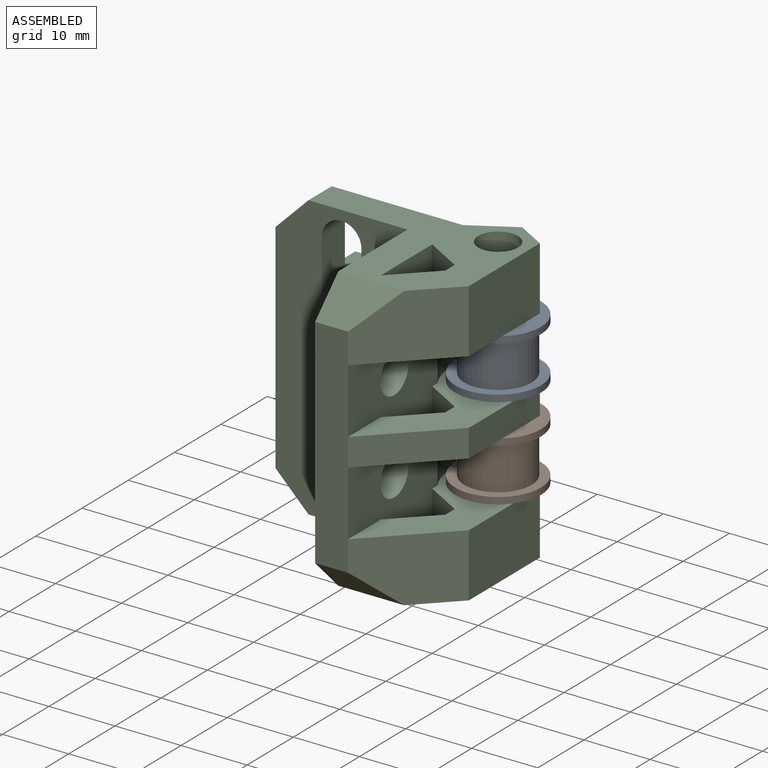
[diagram: assembled view]
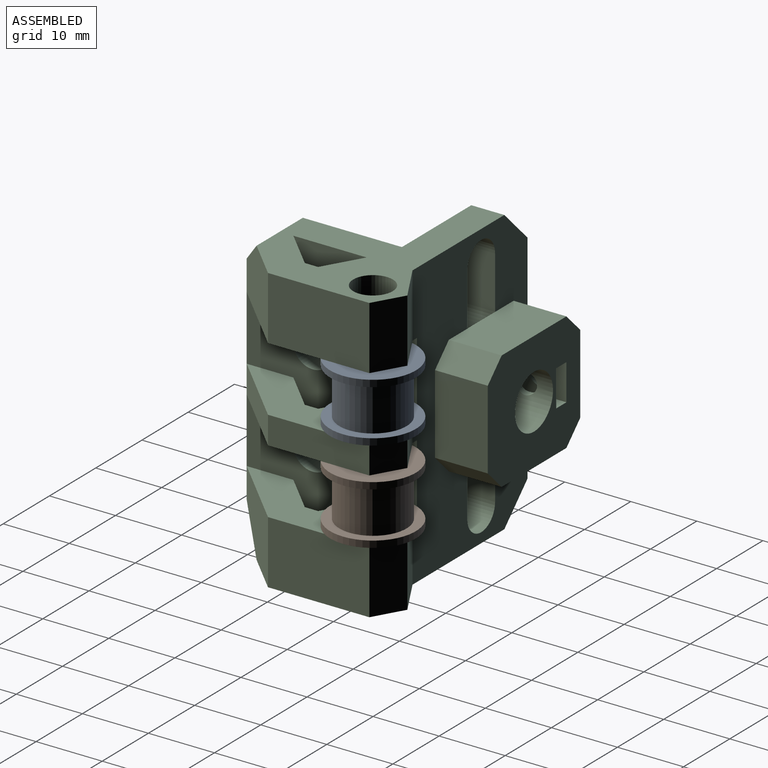
[diagram: assembled view, second angle]
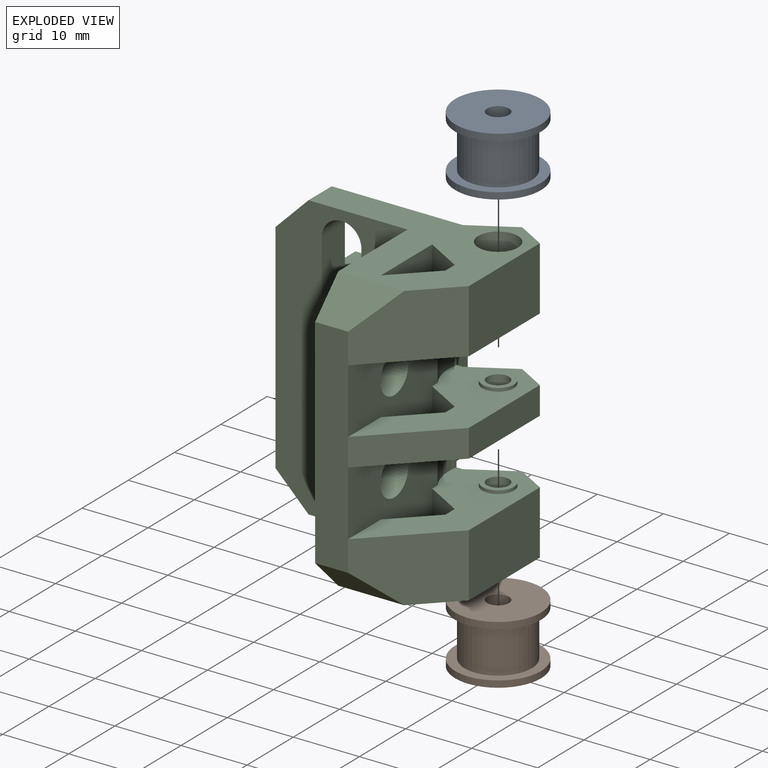
[diagram: exploded view]
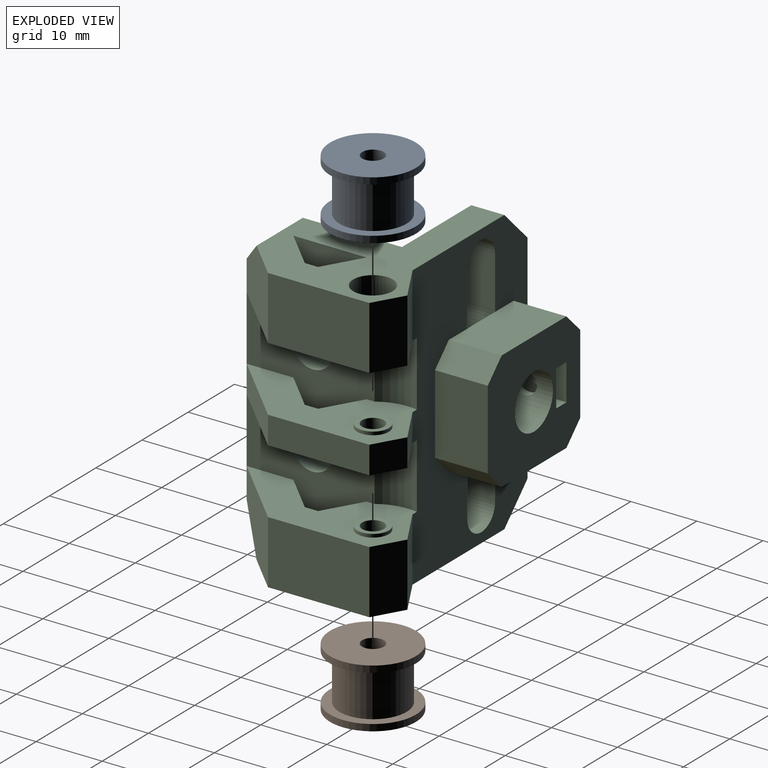
[diagram: exploded view, second angle]
ASSEMBLY  parts=3 mates=2
PART A: 8 faces, bbox 13x13x9 mm
  f0: cylinder r=6.5mm len=13mm, axis (0,0,1), area 40.8mm2, adj f2,f3
  f1: cylinder r=1.65mm len=9mm, axis (0,0,1), area 93.3mm2, adj f2,f6
  f2: plane 13x13mm, normal (0,0,-1), area 124.2mm2, adj f0,f1
  f3: plane 13x13mm, normal (0,0,1), area 51.2mm2, adj f0,f4
  f4: cylinder r=5.09mm len=10.19mm, axis (0,0,-1), area 224mm2, adj f3,f5
  f5: plane 13x13mm, normal (0,0,-1), area 51.2mm2, adj f4,f7
  f6: plane 13x13mm, normal (0,0,1), area 124.2mm2, adj f1,f7
  f7: cylinder r=6.5mm len=13mm, axis (0,0,-1), area 40.8mm2, adj f5,f6
PART B: same geometry as A
PART C: 87 faces, bbox 33x35.8x43 mm
  f0: cylinder r=1.65mm len=7.1mm, axis (0,0,1), area 73.6mm2, adj f16,f76
  f1: plane 20x18mm, normal (1,0,0), area 277.1mm2, adj f7,f8,f41,f42,f43,f61,f62,f64
  f2: cylinder r=1.6mm len=3.2mm, axis (0,1,0), area 8.7mm2, adj f7,f62
  f3: plane 43x20mm, normal (-1,0,0), area 629.6mm2, adj f6,f7,f8,f9,f11,f46,f47,f48
  f4: cylinder r=1.65mm len=7.7mm, axis (0,0,1), area 79.8mm2, adj f13,f34
  f5: plane 43x19.35mm, normal (0,-1,0), area 582.3mm2, adj f6,f9,f21,f22,f23,f24,f25,f32
  f6: plane 30.75x23.7mm, normal (0,0,1), area 330.1mm2, adj f3,f5,f10,f11,f26,f27,f57,f60
  f7: cylinder r=4.1mm len=13mm, axis (1,0,0), area 326.7mm2, adj f1,f2,f3
  f8: plane 33x13mm, normal (0,1,0), area 253mm2, adj f1,f3,f10,f44,f57,f58,f77,f78
  f9: plane 30.75x23.7mm, normal (0,0,-1), area 332.2mm2, adj f3,f5,f10,f11,f30,f31,f35,f36
  f10: plane 43x24.85mm, normal (1,0,0), area 558.6mm2, adj f6,f8,f9,f22,f23,f24,f25,f32
  f11: plane 43x20mm, normal (0,1,0), area 778.5mm2, adj f3,f6,f9,f21,f55,f56,f59,f60
  f12: cylinder r=1.65mm len=5.2mm, axis (0,0,1), area 53.9mm2, adj f14,f15
  f13: plane 4.8x4.8mm, normal (0,0,1), area 9.5mm2, adj f4,f17
  f14: plane 4.8x4.8mm, normal (0,0,-1), area 9.5mm2, adj f12,f18
  f15: plane 4.8x4.8mm, normal (0,0,1), area 9.5mm2, adj f12,f19
  f16: plane 4.8x4.8mm, normal (0,0,-1), area 9.5mm2, adj f0,f20
  f17: cylinder r=2.4mm len=4.8mm, axis (0,0,1), area 7.5mm2, adj f13,f22
  f18: cylinder r=2.4mm len=4.8mm, axis (0,0,1), area 7.5mm2, adj f14,f23
  f19: cylinder r=2.4mm len=4.8mm, axis (0,0,1), area 7.5mm2, adj f15,f24
  f20: cylinder r=2.4mm len=4.8mm, axis (0,0,1), area 7.5mm2, adj f16,f25
  f21: plane 33x5mm, normal (-1,0,0), area 165mm2, adj f5,f11,f26,f28,f30,f59,f60
  f22: plane 28.7x12mm, normal (0,0,1), area 183.1mm2, adj f5,f10,f17,f30,f31,f33,f72,f73
  f23: plane 28.7x12mm, normal (0,0,-1), area 183.1mm2, adj f5,f10,f18,f28,f29,f33,f69,f70
  f24: plane 28.7x12mm, normal (0,0,1), area 183.1mm2, adj f5,f10,f19,f28,f29,f32,f69,f70
  f25: plane 28.7x12mm, normal (0,0,-1), area 183.1mm2, adj f5,f10,f20,f26,f27,f32,f66,f67
  f26: plane 10.75x10.75mm, normal (-0.71,-0.71,0), area 128.3mm2, adj f6,f21,f25,f27,f60
  f27: plane 15.35x9.6mm, normal (0,-1,0), area 147.3mm2, adj f6,f25,f26,f81
  f28: plane 10.75x10.75mm, normal (-0.71,-0.71,0), area 63.9mm2, adj f21,f23,f24,f29
  f29: plane 15.35x4.2mm, normal (0,-1,0), area 64.5mm2, adj f23,f24,f28,f84
  f30: plane 10.75x10.75mm, normal (-0.71,-0.71,0), area 128.3mm2, adj f9,f21,f22,f31,f59
  f31: plane 15.35x9.6mm, normal (0,-1,0), area 147.3mm2, adj f9,f22,f30,f85
  f32: cylinder r=7.5mm len=9.8mm, axis (0,0,1), area 57.8mm2, adj f5,f10,f24,f25
  f33: cylinder r=7.5mm len=9.8mm, axis (0,0,1), area 57.8mm2, adj f5,f10,f22,f23
  f34: plane 6.35x5.5mm, normal (0,0,-1), area 17.6mm2, adj f4,f35,f36,f37,f38,f39,f40
  f35: plane 2.75x2.4mm, normal (-0.87,-0.5,0), area 7.6mm2, adj f9,f34,f36,f40
  f36: plane 2.75x2.4mm, normal (-0.87,0.5,0), area 7.6mm2, adj f9,f34,f35,f37
  f37: plane 3.18x2.4mm, normal (0,1,0), area 7.6mm2, adj f9,f34,f36,f38
  f38: plane 2.75x2.4mm, normal (0.87,0.5,0), area 7.6mm2, adj f9,f34,f37,f39
  f39: plane 2.75x2.4mm, normal (0.87,-0.5,0), area 7.6mm2, adj f9,f34,f38,f40
  f40: plane 3.18x2.4mm, normal (0,-1,0), area 7.6mm2, adj f9,f34,f35,f39
  f41: plane 14x8mm, normal (0,0,1), area 112mm2, adj f1,f10,f50,f78,f80
  f42: plane 12x8mm, normal (0,-1,0), area 96mm2, adj f1,f10,f79,f80
  f43: plane 14x8mm, normal (0,0,-1), area 112mm2, adj f1,f10,f45,f77,f79
  f44: cylinder r=1.6mm len=3.2mm, axis (0,1,0), area 30.2mm2, adj f8,f61
  f45: plane 6x3mm, normal (-1,0,0), area 14.1mm2, adj f43,f48
  f46: cylinder r=3mm len=6mm, axis (1,0,0), area 47.1mm2, adj f3,f10,f47,f49
  f47: plane 8x5mm, normal (0,-1,0), area 40mm2, adj f3,f10,f46,f48
  f48: cylinder r=3mm len=6mm, axis (1,0,0), area 47.1mm2, adj f3,f45,f47,f49
  f49: plane 8x5mm, normal (0,1,0), area 40mm2, adj f3,f10,f46,f48
  f50: plane 6x3mm, normal (-1,0,0), area 14.1mm2, adj f41,f52
  f51: plane 8x5mm, normal (0,1,0), area 40mm2, adj f3,f10,f52,f54
  f52: cylinder r=3mm len=6mm, axis (1,0,0), area 47.1mm2, adj f3,f50,f51,f53
  f53: plane 8x5mm, normal (0,-1,0), area 40mm2, adj f3,f10,f52,f54
  f54: cylinder r=3mm len=6mm, axis (1,0,0), area 47.1mm2, adj f3,f10,f51,f53
  f55: cylinder r=3mm len=6mm, axis (0,-1,0), area 94.2mm2, adj f5,f11
  f56: cylinder r=3mm len=6mm, axis (0,-1,0), area 94.2mm2, adj f5,f11
  f57: plane 5x5mm, normal (0,0.71,0.71), area 35.4mm2, adj f3,f6,f8,f10
  f58: plane 5x5mm, normal (0,0.71,-0.71), area 35.4mm2, adj f3,f8,f9,f10
  f59: plane 10x5mm, normal (-0.71,0,-0.71), area 53mm2, adj f9,f11,f21,f30
  f60: plane 10x5mm, normal (-0.71,0,0.71), area 53mm2, adj f6,f11,f21,f26
  f61: plane 6.75x5.5mm, normal (0,-1,0), area 29.1mm2, adj f1,f44,f63,f64,f65
  f62: plane 6.75x5.5mm, normal (0,1,0), area 29.1mm2, adj f1,f2,f63,f64,f65
  f63: plane 5.5x2.2mm, normal (1,0,0), area 12.1mm2, adj f61,f62,f64,f65
  f64: plane 6.75x2.2mm, normal (0,0,1), area 14.9mm2, adj f1,f61,f62,f63
  f65: plane 6.75x2.2mm, normal (0,0,-1), area 14.9mm2, adj f1,f61,f62,f63
  f66: plane 9.6x5.75mm, normal (-0.87,0.5,0), area 63.7mm2, adj f5,f6,f25,f67
  f67: plane 9.6x2.02mm, normal (0,1,0), area 19.4mm2, adj f6,f25,f66,f68
  f68: plane 9.6x5.75mm, normal (0.71,0.71,0), area 78.1mm2, adj f5,f6,f25,f67
  f69: plane 5.75x4.2mm, normal (-0.87,0.5,0), area 27.9mm2, adj f5,f23,f24,f70
  f70: plane 4.2x2.02mm, normal (0,1,0), area 8.5mm2, adj f23,f24,f69,f71
  f71: plane 5.75x5.75mm, normal (0.71,0.71,0), area 34.2mm2, adj f5,f23,f24,f70
  f72: plane 9.6x2.02mm, normal (0,1,0), area 19.4mm2, adj f9,f22,f73,f74
  f73: plane 9.6x5.75mm, normal (-0.87,0.5,0), area 63.7mm2, adj f5,f9,f22,f72
  f74: plane 9.6x5.75mm, normal (0.71,0.71,0), area 78.1mm2, adj f5,f9,f22,f72
  f75: cylinder r=3mm len=6mm, axis (0,0,1), area 56.5mm2, adj f6,f76
  f76: plane 6x6mm, normal (0,0,1), area 19.7mm2, adj f0,f75
  f77: plane 8x3mm, normal (0,0.71,-0.71), area 33.9mm2, adj f1,f8,f10,f43
  f78: plane 8x3mm, normal (0,0.71,0.71), area 33.9mm2, adj f1,f8,f10,f41
  f79: plane 8x3mm, normal (0,-0.71,-0.71), area 33.9mm2, adj f1,f10,f42,f43
  f80: plane 8x3mm, normal (0,-0.71,0.71), area 33.9mm2, adj f1,f10,f41,f42
  f81: plane 9.6x4.5mm, normal (0.87,-0.5,0), area 49.9mm2, adj f6,f25,f27,f82
  f82: plane 9.6x6.4mm, normal (0.87,0.5,0), area 71mm2, adj f6,f10,f25,f81
  f83: plane 6.4x4.2mm, normal (0.87,0.5,0), area 31mm2, adj f10,f23,f24,f84
  f84: plane 4.5x4.2mm, normal (0.87,-0.5,0), area 21.8mm2, adj f23,f24,f29,f83
  f85: plane 9.6x4.5mm, normal (0.87,-0.5,0), area 49.9mm2, adj f9,f22,f31,f86
  f86: plane 9.6x6.4mm, normal (0.87,0.5,0), area 71mm2, adj f9,f10,f22,f85
PLACE A rot(axis=(0,0,1),0.2deg) t=(0,0,25.1)mm
PLACE B t=(0,0,11.1)mm
PLACE C rot(axis=(0,0,1),90deg) t=(-39.75,-2,11)mm
MATE fastened B.f0 <-> C.f17  axis (0,0,-1) through (0,0,10.1)mm
MATE revolute A.f0 <-> C.f17  axis (0,0,1) through (0,0,33.1)mm
